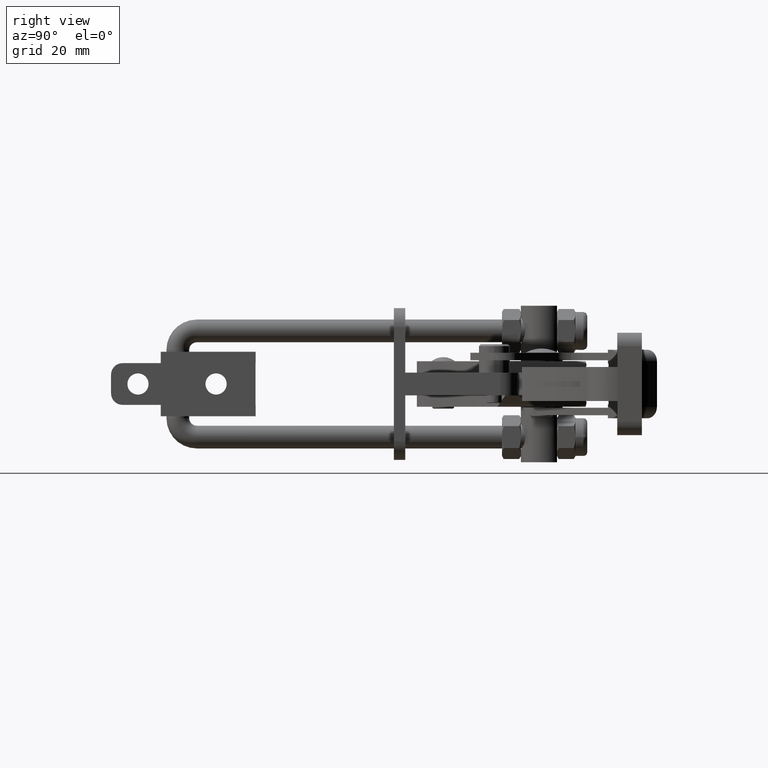
[diagram: clean part render]
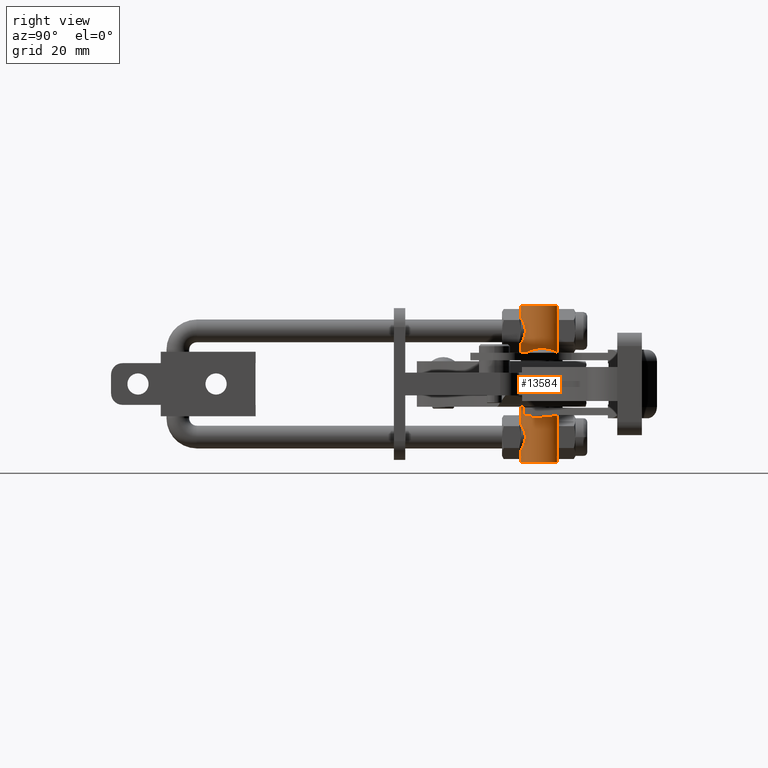
[diagram: same view with one face highlighted and labeled with its STEP entity id]
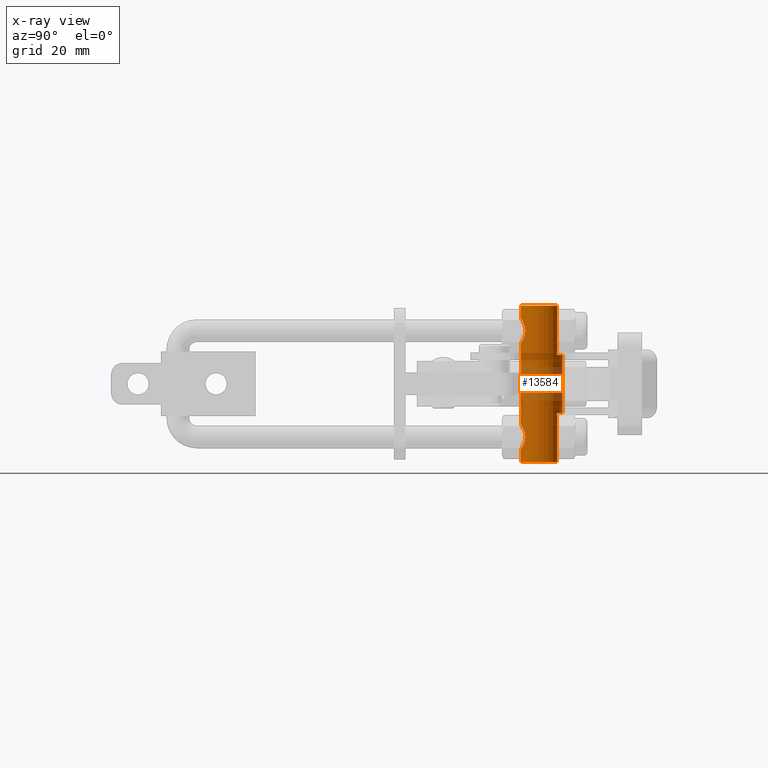
[diagram: x-ray of the same camera — body ghosted, the highlighted face saturated]
A machine part, right view. The second image highlights one B-rep face of the part: STEP entity #13584.
The next image is the same camera in x-ray: the body ghosted, the highlighted face saturated — about 30% of this face is hidden behind the body in this view.
In plain terms, the highlighted cylindrical surface (edge-blend (fillet) strip) has radius 5.5 mm, axis along (0, -0, 1).
Its self-contained STEP definition (entity closure, byte-faithful):
#33 = CARTESIAN_POINT ( 'NONE',  ( -40.69053314716003900, 33.76624600390003600, 11.10594587166854900 ) ) ;
#86 = CARTESIAN_POINT ( 'NONE',  ( -38.61650658627992500, 43.00005253218333200, -20.64999999999978500 ) ) ;
#114 = DIRECTION ( 'NONE',  ( 0.0000000000000000000, 1.000000000000000000, 0.0000000000000000000 ) ) ;
#143 = EDGE_CURVE ( 'NONE', #163, #593, #3496, .T. ) ;
#163 = VERTEX_POINT ( 'NONE', #3522 ) ;
#222 = EDGE_CURVE ( 'NONE', #4250, #13028, #6170, .T. ) ;
#230 = CARTESIAN_POINT ( 'NONE',  ( -42.39142380391529500, 33.50005253218331800, -20.64999999999978500 ) ) ;
#346 = DIRECTION ( 'NONE',  ( 2.241968444763827700E-018, -6.119128233782430400E-017, 1.000000000000000000 ) ) ;
#426 = DIRECTION ( 'NONE',  ( -2.241968444763827700E-018, 6.119128233782430400E-017, -1.000000000000000000 ) ) ;
#430 = CARTESIAN_POINT ( 'NONE',  ( -41.50423186063085300, 33.56758786450625800, -10.76187665745266600 ) ) ;
#440 = CARTESIAN_POINT ( 'NONE',  ( -39.49260322390974000, 34.32394350714024300, 12.30733655509225100 ) ) ;
#478 = CARTESIAN_POINT ( 'NONE',  ( -39.04149441664871700, 34.63794603322919100, -13.77414189415355500 ) ) ;
#518 = VECTOR ( 'NONE', #4685, 1000.000000000000000 ) ;
#524 = CARTESIAN_POINT ( 'NONE',  ( -41.28943371946704800, 33.60754979001185200, -17.17119426736216400 ) ) ;
#593 = VERTEX_POINT ( 'NONE', #13743 ) ;
#733 = CARTESIAN_POINT ( 'NONE',  ( -39.04149441664872500, 34.63794603322917700, 14.22585810584645200 ) ) ;
#755 = LINE ( 'NONE', #11954, #12366 ) ;
#771 = CARTESIAN_POINT ( 'NONE',  ( -39.22020098412432500, 34.50517574533374400, 15.10168343253885400 ) ) ;
#811 = CARTESIAN_POINT ( 'NONE',  ( -39.21900484770598200, 34.50603137486642400, 12.90186032572402800 ) ) ;
#823 = CARTESIAN_POINT ( 'NONE',  ( -40.69184405452034500, 33.76576756182178900, 16.89494687537322200 ) ) ;
#858 = ORIENTED_EDGE ( 'NONE', *, *, #7865, .T. ) ;
#918 = DIRECTION ( 'NONE',  ( 2.241968444763827700E-018, -6.119128233782430400E-017, 1.000000000000000000 ) ) ;
#1171 = CIRCLE ( 'NONE', #2043, 5.499999999999998200 ) ;
#1557 = CARTESIAN_POINT ( 'NONE',  ( -40.88506979977666600, 33.70627042454989200, -10.99975197680906700 ) ) ;
#1610 = CARTESIAN_POINT ( 'NONE',  ( -39.06368086365260000, 34.62064039465041500, -14.44646489402280000 ) ) ;
#1655 = CARTESIAN_POINT ( 'NONE',  ( -41.93544039147256800, 33.51458756867487000, -17.32627510132351000 ) ) ;
#1709 = EDGE_LOOP ( 'NONE', ( #13070, #2485, #11994, #5473, #6367, #4925, #858, #12472, #3852, #13535, #3498, #8804, #6662, #12815, #14187, #2106 ) ) ;
#1806 = CARTESIAN_POINT ( 'NONE',  ( -42.39142380391529500, 44.50005253218331800, 7.650000000000213500 ) ) ;
#1839 = VECTOR ( 'NONE', #10881, 1000.000000000000000 ) ;
#2043 = AXIS2_PLACEMENT_3D ( 'NONE', #7125, #426, #8303 ) ;
#2064 = CARTESIAN_POINT ( 'NONE',  ( -42.39142380391529500, 33.50005253218331800, -17.34999999999978500 ) ) ;
#2100 = VERTEX_POINT ( 'NONE', #6372 ) ;
#2106 = ORIENTED_EDGE ( 'NONE', *, *, #9183, .T. ) ;
#2431 = EDGE_CURVE ( 'NONE', #4036, #2908, #9593, .T. ) ;
#2485 = ORIENTED_EDGE ( 'NONE', *, *, #222, .T. ) ;
#2502 = EDGE_CURVE ( 'NONE', #7573, #163, #755, .T. ) ;
#2515 = AXIS2_PLACEMENT_3D ( 'NONE', #5224, #8599, #9796 ) ;
#2538 = LINE ( 'NONE', #230, #5174 ) ;
#2649 = EDGE_CURVE ( 'NONE', #11274, #12386, #3459, .T. ) ;
#2657 = VECTOR ( 'NONE', #918, 1000.000000000000000 ) ;
#2682 = CARTESIAN_POINT ( 'NONE',  ( -40.33365994552624300, 33.89594454169039800, -11.34766204285835500 ) ) ;
#2728 = CARTESIAN_POINT ( 'NONE',  ( -39.21900484770598900, 34.50603137486642400, -15.09813967427597500 ) ) ;
#2774 = CARTESIAN_POINT ( 'NONE',  ( -42.39142380391529500, 33.50005253218331800, -17.34999999999978500 ) ) ;
#2776 = AXIS2_PLACEMENT_3D ( 'NONE', #13572, #6863, #114 ) ;
#2819 = CARTESIAN_POINT ( 'NONE',  ( -39.04135352015499200, 34.63805423991447400, 13.77624147498992900 ) ) ;
#2908 = VERTEX_POINT ( 'NONE', #5831 ) ;
#2986 = CARTESIAN_POINT ( 'NONE',  ( -41.93544039147256800, 33.51458756867487000, 10.67372489867649000 ) ) ;
#3101 = VECTOR ( 'NONE', #9444, 1000.000000000000000 ) ;
#3128 = CIRCLE ( 'NONE', #2776, 5.499999999999998200 ) ;
#3140 = VECTOR ( 'NONE', #346, 1000.000000000000000 ) ;
#3313 = EDGE_CURVE ( 'NONE', #4200, #4250, #4652, .T. ) ;
#3459 = LINE ( 'NONE', #8925, #3101 ) ;
#3496 = LINE ( 'NONE', #86, #518 ) ;
#3498 = ORIENTED_EDGE ( 'NONE', *, *, #8002, .T. ) ;
#3522 = CARTESIAN_POINT ( 'NONE',  ( -38.61650658627992500, 43.00005253218331800, 17.27871926215164300 ) ) ;
#3674 = DIRECTION ( 'NONE',  ( -2.241968444763827700E-018, 6.119128233782430400E-017, -1.000000000000000000 ) ) ;
#3742 = CARTESIAN_POINT ( 'NONE',  ( -39.86773240620438200, 34.11037702474183000, 16.21339683967667600 ) ) ;
#3813 = CARTESIAN_POINT ( 'NONE',  ( -39.86773240620438200, 34.11037702474184400, -11.78660316032331900 ) ) ;
#3820 = CARTESIAN_POINT ( 'NONE',  ( -42.39142380391529500, 33.50005253218331800, -20.64999999999978500 ) ) ;
#3852 = ORIENTED_EDGE ( 'NONE', *, *, #2431, .T. ) ;
#3858 = CARTESIAN_POINT ( 'NONE',  ( -39.49260322390974000, 34.32394350714024300, -15.69266344490776900 ) ) ;
#3866 = CARTESIAN_POINT ( 'NONE',  ( -39.49280028264914200, 34.32383821998154600, 15.69289496033549700 ) ) ;
#4033 = CARTESIAN_POINT ( 'NONE',  ( -39.06368086365260000, 34.62064039465041500, 13.55353510597720900 ) ) ;
#4036 = VERTEX_POINT ( 'NONE', #11885 ) ;
#4110 = CARTESIAN_POINT ( 'NONE',  ( -39.15336523655173600, 34.55391932891982500, 13.11220458866573500 ) ) ;
#4200 = VERTEX_POINT ( 'NONE', #7926 ) ;
#4241 = CARTESIAN_POINT ( 'NONE',  ( -39.06491476598465300, 34.61970771295044400, 14.45410065175235700 ) ) ;
#4250 = VERTEX_POINT ( 'NONE', #6771 ) ;
#4309 = FACE_OUTER_BOUND ( 'NONE', #1709, .T. ) ;
#4331 = CIRCLE ( 'NONE', #10346, 5.499999999999998200 ) ;
#4411 = CARTESIAN_POINT ( 'NONE',  ( -40.33507417991356900, 33.89542854744106400, 11.34669931070417800 ) ) ;
#4462 = CARTESIAN_POINT ( 'NONE',  ( -42.39142380391529500, 33.50005253218331100, 17.35000000000021500 ) ) ;
#4617 = DIRECTION ( 'NONE',  ( 0.0000000000000000000, -1.000000000000000000, -3.154042683594195600E-016 ) ) ;
#4652 = CIRCLE ( 'NONE', #12353, 5.499999999999998200 ) ;
#4685 = DIRECTION ( 'NONE',  ( 2.241968444763827700E-018, -6.119128233782430400E-017, 1.000000000000000000 ) ) ;
#4748 = CARTESIAN_POINT ( 'NONE',  ( -42.39142380391529500, 33.50005253218331800, 20.65000000000020800 ) ) ;
#4780 = EDGE_CURVE ( 'NONE', #4036, #7916, #6032, .T. ) ;
#4818 = DIRECTION ( 'NONE',  ( 2.241968444763827700E-018, -6.119128233782430400E-017, 1.000000000000000000 ) ) ;
#4839 = LINE ( 'NONE', #5159, #1839 ) ;
#4850 = EDGE_CURVE ( 'NONE', #2100, #7573, #13908, .T. ) ;
#4914 = CARTESIAN_POINT ( 'NONE',  ( -41.50423186063086700, 33.56758786450625800, 17.23812334254733300 ) ) ;
#4925 = ORIENTED_EDGE ( 'NONE', *, *, #143, .T. ) ;
#4944 = VECTOR ( 'NONE', #13531, 1000.000000000000000 ) ;
#4946 = CARTESIAN_POINT ( 'NONE',  ( -39.49280028264913500, 34.32383821998154600, -12.30710503966450100 ) ) ;
#4999 = CARTESIAN_POINT ( 'NONE',  ( -39.86759649696026000, 34.11041792699278800, -16.21334300927412600 ) ) ;
#5159 = CARTESIAN_POINT ( 'NONE',  ( -38.61650658627991800, 43.00005253218332500, -20.64999999999978500 ) ) ;
#5174 = VECTOR ( 'NONE', #6961, 1000.000000000000000 ) ;
#5203 = CARTESIAN_POINT ( 'NONE',  ( -41.28943371946704800, 33.60754979001185200, 10.82880573263784500 ) ) ;
#5224 = CARTESIAN_POINT ( 'NONE',  ( -42.39142380391529500, 39.00005253218331800, -20.64999999999978500 ) ) ;
#5381 = DIRECTION ( 'NONE',  ( 2.241968444763827700E-018, -3.337185885346571300E-016, 1.000000000000000000 ) ) ;
#5473 = ORIENTED_EDGE ( 'NONE', *, *, #4850, .T. ) ;
#5504 = CARTESIAN_POINT ( 'NONE',  ( -41.94269464237733300, 33.51394060757095900, 17.32734044927238800 ) ) ;
#5562 = B_SPLINE_CURVE_WITH_KNOTS ( 'NONE', 3,
 ( #7133, #13884, #12761, #430, #8311, #1557, #9477, #2682, #10580, #3813, #11700, #4946, #12803, #6103, #13928, #7180, #478, #8363, #1610, #9528, #2728, #10629, #3858, #11750, #4999, #12862, #6153, #13974, #7233, #524, #8406, #1655, #9576, #2774 ),
 .UNSPECIFIED., .F., .F.,
 ( 4, 2, 2, 2, 2, 2, 2, 2, 2, 2, 2, 2, 2, 2, 2, 2, 4 ),
 ( 0.01075775622540921600, 0.01142871145923930900, 0.01209966669306940200, 0.01277062192689949400, 0.01344157716072958900, 0.01411253239455968100, 0.01478348762838977400, 0.01545444286221986700, 0.01612539809604995900, 0.01679635332988005400, 0.01746730856371014900, 0.01813826379754024000, 0.01880921903137033200, 0.01948017426520042700, 0.02015112949903051900, 0.02082208473286061000, 0.02149303996669070500 ),
 .UNSPECIFIED. ) ;
#5636 = CARTESIAN_POINT ( 'NONE',  ( -38.61650658627992500, 43.00005253218331800, 10.72128073784927700 ) ) ;
#5760 = CARTESIAN_POINT ( 'NONE',  ( -42.16529960011111200, 33.50005253218331100, 17.35000000000021100 ) ) ;
#5831 = CARTESIAN_POINT ( 'NONE',  ( -42.39142380391529500, 33.50005253218331800, 10.65000000000020100 ) ) ;
#5903 = CARTESIAN_POINT ( 'NONE',  ( -42.39142380391529500, 33.50005253218331100, -10.64999999999978400 ) ) ;
#6032 = LINE ( 'NONE', #3820, #2657 ) ;
#6103 = CARTESIAN_POINT ( 'NONE',  ( -39.22020098412429700, 34.50517574533374400, -12.89831656746115000 ) ) ;
#6153 = CARTESIAN_POINT ( 'NONE',  ( -40.33507417991357600, 33.89542854744106400, -16.65330068929582900 ) ) ;
#6170 = LINE ( 'NONE', #8350, #3140 ) ;
#6342 = CARTESIAN_POINT ( 'NONE',  ( -40.17077274411683900, 33.96547809950039500, 11.48260046423886600 ) ) ;
#6367 = ORIENTED_EDGE ( 'NONE', *, *, #2502, .T. ) ;
#6372 = CARTESIAN_POINT ( 'NONE',  ( -38.61650658627992500, 43.00005253218331800, 7.650000000000212600 ) ) ;
#6486 = CARTESIAN_POINT ( 'NONE',  ( -41.49944845292278500, 33.56842048357000200, 10.76327219319735400 ) ) ;
#6662 = ORIENTED_EDGE ( 'NONE', *, *, #13360, .F. ) ;
#6771 = CARTESIAN_POINT ( 'NONE',  ( -42.39142380391529500, 44.50005253218331800, -7.649999999999789000 ) ) ;
#6863 = DIRECTION ( 'NONE',  ( -2.241968444763827700E-018, 6.119128233782430400E-017, -1.000000000000000000 ) ) ;
#6961 = DIRECTION ( 'NONE',  ( 2.241968444763827700E-018, -6.119128233782430400E-017, 1.000000000000000000 ) ) ;
#7100 = CARTESIAN_POINT ( 'NONE',  ( -39.86759649696025300, 34.11041792699278800, 11.78665699072588100 ) ) ;
#7125 = CARTESIAN_POINT ( 'NONE',  ( -42.39142380391529500, 39.00005253218331800, -20.64999999999978500 ) ) ;
#7133 = CARTESIAN_POINT ( 'NONE',  ( -42.39142380391529500, 33.50005253218331100, -10.64999999999978400 ) ) ;
#7180 = CARTESIAN_POINT ( 'NONE',  ( -39.06491476598465300, 34.61970771295044400, -13.54589934824765300 ) ) ;
#7233 = CARTESIAN_POINT ( 'NONE',  ( -40.88435320024401400, 33.70645204044815600, -16.99993223642182000 ) ) ;
#7342 = CARTESIAN_POINT ( 'NONE',  ( -39.73147034756635100, 34.18405793301583600, 11.95233843058775500 ) ) ;
#7573 = VERTEX_POINT ( 'NONE', #5636 ) ;
#7865 = EDGE_CURVE ( 'NONE', #593, #7916, #3128, .T. ) ;
#7894 = LINE ( 'NONE', #12427, #13887 ) ;
#7916 = VERTEX_POINT ( 'NONE', #4748 ) ;
#7926 = CARTESIAN_POINT ( 'NONE',  ( -38.61650658627991800, 43.00005253218332500, -7.649999999999789900 ) ) ;
#7939 = EDGE_CURVE ( 'NONE', #13028, #2100, #4331, .T. ) ;
#8002 = EDGE_CURVE ( 'NONE', #9491, #12386, #5562, .T. ) ;
#8303 = DIRECTION ( 'NONE',  ( 0.0000000000000000000, 1.000000000000000000, 0.0000000000000000000 ) ) ;
#8311 = CARTESIAN_POINT ( 'NONE',  ( -41.28904952376792900, 33.60765025348099800, -10.82898099455155000 ) ) ;
#8317 = CARTESIAN_POINT ( 'NONE',  ( -38.61650658627991800, 43.00005253218332500, -20.64999999999978500 ) ) ;
#8350 = CARTESIAN_POINT ( 'NONE',  ( -42.39142380391529500, 44.50005253218331800, -20.64999999999978500 ) ) ;
#8363 = CARTESIAN_POINT ( 'NONE',  ( -39.04135352015498500, 34.63805423991447400, -14.22375852501007500 ) ) ;
#8406 = CARTESIAN_POINT ( 'NONE',  ( -41.49944845292279200, 33.56842048357000200, -17.23672780680265500 ) ) ;
#8482 = CARTESIAN_POINT ( 'NONE',  ( -39.39041377594158200, 34.38979111728247800, 15.50475890769752000 ) ) ;
#8550 = VERTEX_POINT ( 'NONE', #13816 ) ;
#8599 = DIRECTION ( 'NONE',  ( 2.241968444763827700E-018, -6.119128233782430400E-017, 1.000000000000000000 ) ) ;
#8804 = ORIENTED_EDGE ( 'NONE', *, *, #2649, .F. ) ;
#8925 = CARTESIAN_POINT ( 'NONE',  ( -42.39142380391529500, 33.50005253218331800, -20.64999999999978500 ) ) ;
#9183 = EDGE_CURVE ( 'NONE', #8550, #4200, #4839, .T. ) ;
#9444 = DIRECTION ( 'NONE',  ( 2.241968444763827700E-018, -6.119128233782430400E-017, 1.000000000000000000 ) ) ;
#9474 = EDGE_CURVE ( 'NONE', #9491, #2908, #2538, .T. ) ;
#9477 = CARTESIAN_POINT ( 'NONE',  ( -40.69184405452033800, 33.76576756182178900, -11.10505312462678000 ) ) ;
#9491 = VERTEX_POINT ( 'NONE', #5903 ) ;
#9528 = CARTESIAN_POINT ( 'NONE',  ( -39.15336523655172800, 34.55391932891982500, -14.88779541133427600 ) ) ;
#9576 = CARTESIAN_POINT ( 'NONE',  ( -42.16420503536865300, 33.50005253218331800, -17.34999999999978800 ) ) ;
#9593 = B_SPLINE_CURVE_WITH_KNOTS ( 'NONE', 3,
 ( #4462, #5760, #5504, #4914, #10929, #12696, #823, #13330, #12919, #3742, #11280, #3866, #8482, #771, #12136, #4241, #733, #2819, #4033, #4110, #811, #11867, #440, #7342, #7100, #6342, #4411, #33, #13054, #5203, #6486, #2986, #11011, #11468 ),
 .UNSPECIFIED., .F., .F.,
 ( 4, 2, 2, 2, 2, 2, 2, 2, 2, 2, 2, 2, 2, 2, 2, 2, 4 ),
 ( 0.01075775622540922800, 0.01142871145923932100, 0.01209966669306941300, 0.01277062192689950600, 0.01344157716072959900, 0.01411253239455969100, 0.01478348762838978400, 0.01545444286221987800, 0.01612539809604996900, 0.01679635332988006100, 0.01746730856371015600, 0.01813826379754024700, 0.01880921903137033900, 0.01948017426520043400, 0.02015112949903052900, 0.02082208473286061700, 0.02149303996669071200 ),
 .UNSPECIFIED. ) ;
#9695 = VECTOR ( 'NONE', #11706, 1000.000000000000000 ) ;
#9796 = DIRECTION ( 'NONE',  ( 0.0000000000000000000, -1.000000000000000000, 0.0000000000000000000 ) ) ;
#10346 = AXIS2_PLACEMENT_3D ( 'NONE', #10436, #3674, #11543 ) ;
#10436 = CARTESIAN_POINT ( 'NONE',  ( -42.39142380391529500, 39.00005253218331800, 7.650000000000213500 ) ) ;
#10535 = CARTESIAN_POINT ( 'NONE',  ( -42.39142380391529500, 33.50005253218331800, -20.64999999999978500 ) ) ;
#10580 = CARTESIAN_POINT ( 'NONE',  ( -40.16935029699049400, 33.96613416089679300, -11.48394491900638300 ) ) ;
#10629 = CARTESIAN_POINT ( 'NONE',  ( -39.38834271437028900, 34.39115112666972600, -15.50055214756172500 ) ) ;
#10881 = DIRECTION ( 'NONE',  ( 2.241968444763827700E-018, -6.119128233782430400E-017, 1.000000000000000000 ) ) ;
#10929 = CARTESIAN_POINT ( 'NONE',  ( -41.28904952376792900, 33.60765025348099000, 17.17101900544844300 ) ) ;
#11011 = CARTESIAN_POINT ( 'NONE',  ( -42.16420503536865300, 33.50005253218331800, 10.65000000000020500 ) ) ;
#11065 = EDGE_CURVE ( 'NONE', #13713, #11351, #7894, .T. ) ;
#11093 = CARTESIAN_POINT ( 'NONE',  ( -38.61650658627991800, 43.00005253218332500, -20.64999999999978500 ) ) ;
#11213 = DIRECTION ( 'NONE',  ( 2.241968444763827700E-018, -6.119128233782430400E-017, 1.000000000000000000 ) ) ;
#11274 = VERTEX_POINT ( 'NONE', #10535 ) ;
#11280 = CARTESIAN_POINT ( 'NONE',  ( -39.73067299713255100, 34.18451478901455000, 16.04653776143314700 ) ) ;
#11292 = EDGE_CURVE ( 'NONE', #11351, #8550, #12977, .T. ) ;
#11351 = VERTEX_POINT ( 'NONE', #12904 ) ;
#11468 = CARTESIAN_POINT ( 'NONE',  ( -42.39142380391529500, 33.50005253218331800, 10.65000000000020100 ) ) ;
#11543 = DIRECTION ( 'NONE',  ( 0.0000000000000000000, 1.000000000000000000, 0.0000000000000000000 ) ) ;
#11700 = CARTESIAN_POINT ( 'NONE',  ( -39.73067299713255100, 34.18451478901455700, -11.95346223856686100 ) ) ;
#11706 = DIRECTION ( 'NONE',  ( 2.241968444763827700E-018, -6.119128233782430400E-017, 1.000000000000000000 ) ) ;
#11750 = CARTESIAN_POINT ( 'NONE',  ( -39.73147034756635100, 34.18405793301583600, -16.04766156941225600 ) ) ;
#11867 = CARTESIAN_POINT ( 'NONE',  ( -39.38834271437027500, 34.39115112666972600, 12.49944785243828500 ) ) ;
#11885 = CARTESIAN_POINT ( 'NONE',  ( -42.39142380391529500, 33.50005253218331100, 17.35000000000021500 ) ) ;
#11917 = CYLINDRICAL_SURFACE ( 'NONE', #2515, 5.499999999999998200 ) ;
#11954 = CARTESIAN_POINT ( 'NONE',  ( -38.61650658627992500, 43.00005253218333200, -20.64999999999978500 ) ) ;
#11994 = ORIENTED_EDGE ( 'NONE', *, *, #7939, .T. ) ;
#12136 = CARTESIAN_POINT ( 'NONE',  ( -39.15402819001845100, 34.55344115339880100, 14.88946018487499300 ) ) ;
#12353 = AXIS2_PLACEMENT_3D ( 'NONE', #13950, #5381, #4617 ) ;
#12366 = VECTOR ( 'NONE', #4818, 1000.000000000000000 ) ;
#12386 = VERTEX_POINT ( 'NONE', #2064 ) ;
#12427 = CARTESIAN_POINT ( 'NONE',  ( -38.61650658627991800, 43.00005253218332500, -20.64999999999978500 ) ) ;
#12472 = ORIENTED_EDGE ( 'NONE', *, *, #4780, .F. ) ;
#12696 = CARTESIAN_POINT ( 'NONE',  ( -40.88506979977666600, 33.70627042454987800, 17.00024802319092700 ) ) ;
#12761 = CARTESIAN_POINT ( 'NONE',  ( -41.94269464237734700, 33.51394060757095900, -10.67265955072761200 ) ) ;
#12803 = CARTESIAN_POINT ( 'NONE',  ( -39.39041377594158200, 34.38979111728249900, -12.49524109230248700 ) ) ;
#12815 = ORIENTED_EDGE ( 'NONE', *, *, #11065, .T. ) ;
#12862 = CARTESIAN_POINT ( 'NONE',  ( -40.17077274411683900, 33.96547809950039500, -16.51739953576114300 ) ) ;
#12904 = CARTESIAN_POINT ( 'NONE',  ( -38.61650658628007400, 43.00005253218320400, -17.27871926215032200 ) ) ;
#12919 = CARTESIAN_POINT ( 'NONE',  ( -40.16935029699049400, 33.96613416089678600, 16.51605508099361700 ) ) ;
#12977 = LINE ( 'NONE', #8317, #9695 ) ;
#13028 = VERTEX_POINT ( 'NONE', #1806 ) ;
#13054 = CARTESIAN_POINT ( 'NONE',  ( -40.88435320024398600, 33.70645204044815600, 11.00006776357819000 ) ) ;
#13070 = ORIENTED_EDGE ( 'NONE', *, *, #3313, .T. ) ;
#13330 = CARTESIAN_POINT ( 'NONE',  ( -40.33365994552625700, 33.89594454169039000, 16.65233795714165800 ) ) ;
#13360 = EDGE_CURVE ( 'NONE', #13713, #11274, #1171, .T. ) ;
#13531 = DIRECTION ( 'NONE',  ( 2.241968444763827700E-018, -6.119128233782430400E-017, 1.000000000000000000 ) ) ;
#13535 = ORIENTED_EDGE ( 'NONE', *, *, #9474, .F. ) ;
#13572 = CARTESIAN_POINT ( 'NONE',  ( -42.39142380391529500, 39.00005253218331800, 20.65000000000020800 ) ) ;
#13584 = ADVANCED_FACE ( 'NONE', ( #4309 ), #11917, .T. ) ;
#13600 = CARTESIAN_POINT ( 'NONE',  ( -38.61650658627992500, 43.00005253218333200, -20.64999999999978500 ) ) ;
#13713 = VERTEX_POINT ( 'NONE', #11093 ) ;
#13743 = CARTESIAN_POINT ( 'NONE',  ( -38.61650658627991800, 43.00005253218331800, 20.65000000000020500 ) ) ;
#13816 = CARTESIAN_POINT ( 'NONE',  ( -38.61650658628006700, 43.00005253218320400, -10.72128073784818800 ) ) ;
#13884 = CARTESIAN_POINT ( 'NONE',  ( -42.16529960011111200, 33.50005253218331100, -10.64999999999978700 ) ) ;
#13887 = VECTOR ( 'NONE', #11213, 1000.000000000000000 ) ;
#13908 = LINE ( 'NONE', #13600, #4944 ) ;
#13928 = CARTESIAN_POINT ( 'NONE',  ( -39.15402819001845100, 34.55344115339880800, -13.11053981512501900 ) ) ;
#13950 = CARTESIAN_POINT ( 'NONE',  ( -42.39142380391529500, 39.00005253218331800, -7.649999999999790700 ) ) ;
#13974 = CARTESIAN_POINT ( 'NONE',  ( -40.69053314716005300, 33.76624600390003600, -16.89405412833145800 ) ) ;
#14187 = ORIENTED_EDGE ( 'NONE', *, *, #11292, .T. ) ;